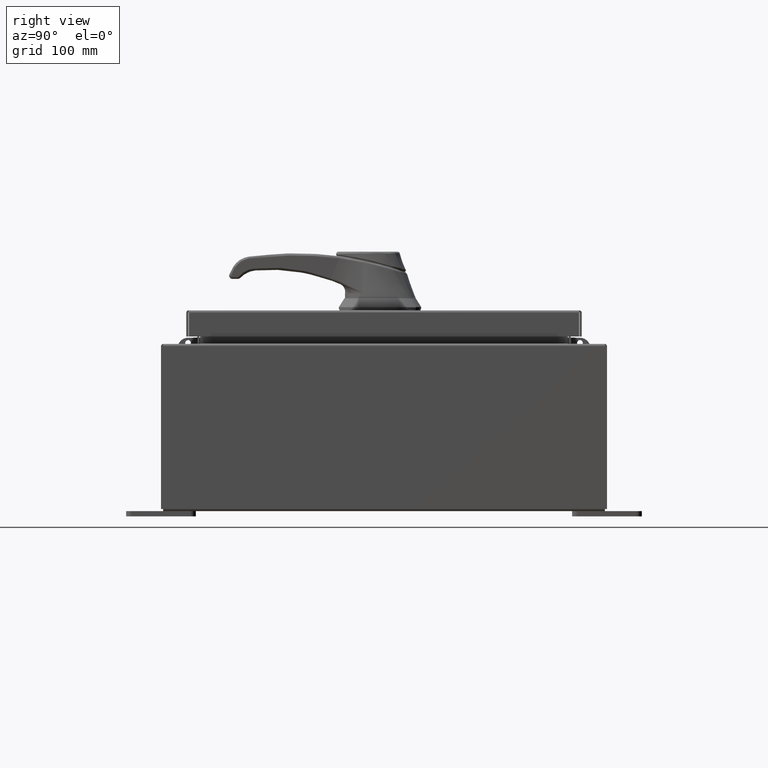
[diagram: clean part render]
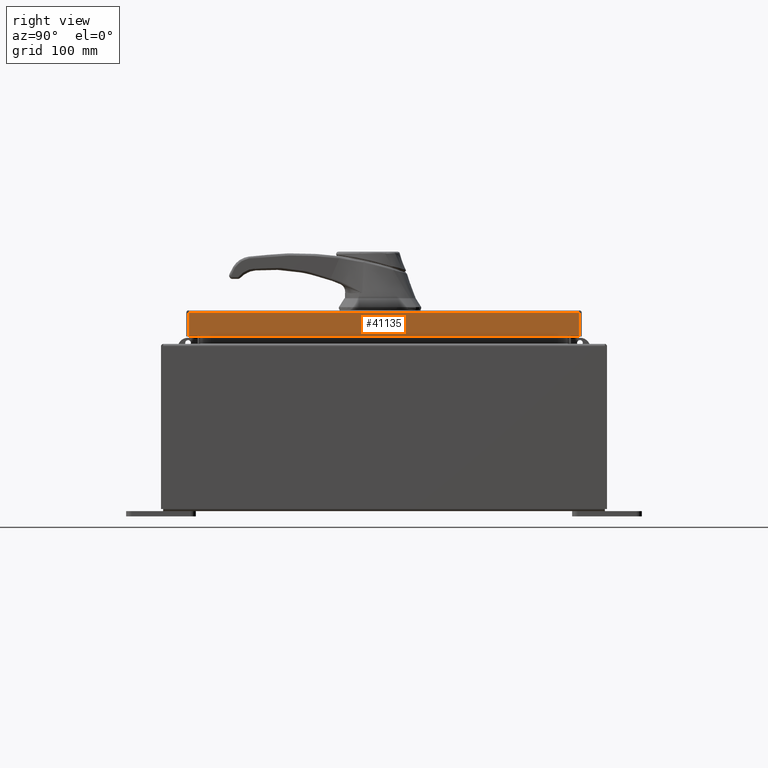
[diagram: same view with one face highlighted and labeled with its STEP entity id]
A machine part, right view. The second image highlights one B-rep face of the part: STEP entity #41135.
In plain terms, the highlighted planar face has unit normal (1, 0, 0).
Its self-contained STEP definition (entity closure, byte-faithful):
#1383 = EDGE_CURVE ( 'NONE', #99261, #13840, #56932, .T. ) ;
#3259 = CARTESIAN_POINT ( 'NONE',  ( 7.078000000000002100, -7.005157864376262600, -0.9376999999999997600 ) ) ;
#6635 = VECTOR ( 'NONE', #44452, 39.37007874015748100 ) ;
#7048 = CARTESIAN_POINT ( 'NONE',  ( 7.077999999999999400, 0.0000000000000000000, -0.08769999999999997200 ) ) ;
#13840 = VERTEX_POINT ( 'NONE', #3259 ) ;
#19489 = DIRECTION ( 'NONE',  ( 1.000000000000000000, 0.0000000000000000000, 3.798629886902798700E-015 ) ) ;
#20292 = CARTESIAN_POINT ( 'NONE',  ( 7.077999999999999400, 7.005157864376269700, -0.08769999999999997200 ) ) ;
#22061 = EDGE_CURVE ( 'NONE', #91090, #26902, #78703, .T. ) ;
#26902 = VERTEX_POINT ( 'NONE', #36541 ) ;
#36167 = CARTESIAN_POINT ( 'NONE',  ( 7.077999999999999400, -7.005157864376269700, -0.07469999999999972500 ) ) ;
#36541 = CARTESIAN_POINT ( 'NONE',  ( 7.077999999999999400, -7.005157864376269700, -0.08769999999999997200 ) ) ;
#38975 = ORIENTED_EDGE ( 'NONE', *, *, #81507, .T. ) ;
#39589 = ORIENTED_EDGE ( 'NONE', *, *, #1383, .F. ) ;
#41135 = ADVANCED_FACE ( 'NONE', ( #62027 ), #68907, .T. ) ;
#44452 = DIRECTION ( 'NONE',  ( -3.798629886902798700E-015, -6.982962677686265900E-015, 1.000000000000000000 ) ) ;
#52797 = CARTESIAN_POINT ( 'NONE',  ( 7.078000000000002100, -7.094000000000000300, -0.9376999999999997600 ) ) ;
#52804 = VECTOR ( 'NONE', #71116, 39.37007874015748100 ) ;
#56390 = DIRECTION ( 'NONE',  ( 0.0000000000000000000, -1.000000000000000000, 0.0000000000000000000 ) ) ;
#56932 = LINE ( 'NONE', #52797, #62076 ) ;
#60566 = CARTESIAN_POINT ( 'NONE',  ( 7.077999999999999400, 0.0000000000000000000, 2.714751599550958800E-014 ) ) ;
#62027 = FACE_OUTER_BOUND ( 'NONE', #104977, .T. ) ;
#62076 = VECTOR ( 'NONE', #95375, 39.37007874015748100 ) ;
#68907 = PLANE ( 'NONE',  #101456 ) ;
#70553 = CARTESIAN_POINT ( 'NONE',  ( 7.078000000000002100, 7.005157864376276000, -0.9376999999999997600 ) ) ;
#71116 = DIRECTION ( 'NONE',  ( -3.798629886902798700E-015, -6.982962677686265900E-015, 1.000000000000000000 ) ) ;
#72457 = LINE ( 'NONE', #36167, #6635 ) ;
#76122 = VECTOR ( 'NONE', #56390, 39.37007874015748100 ) ;
#77257 = DIRECTION ( 'NONE',  ( 3.798629886902798700E-015, 0.0000000000000000000, -1.000000000000000000 ) ) ;
#78703 = LINE ( 'NONE', #7048, #76122 ) ;
#81507 = EDGE_CURVE ( 'NONE', #99261, #91090, #102172, .T. ) ;
#84480 = ORIENTED_EDGE ( 'NONE', *, *, #22061, .T. ) ;
#91090 = VERTEX_POINT ( 'NONE', #20292 ) ;
#95375 = DIRECTION ( 'NONE',  ( 0.0000000000000000000, -1.000000000000000000, 0.0000000000000000000 ) ) ;
#99261 = VERTEX_POINT ( 'NONE', #70553 ) ;
#99988 = ORIENTED_EDGE ( 'NONE', *, *, #107083, .F. ) ;
#101456 = AXIS2_PLACEMENT_3D ( 'NONE', #60566, #19489, #77257 ) ;
#102172 = LINE ( 'NONE', #103897, #52804 ) ;
#103897 = CARTESIAN_POINT ( 'NONE',  ( 7.077999999999999400, 7.005157864376269700, 7.606427191374951500E-014 ) ) ;
#104977 = EDGE_LOOP ( 'NONE', ( #99988, #39589, #38975, #84480 ) ) ;
#107083 = EDGE_CURVE ( 'NONE', #13840, #26902, #72457, .T. ) ;